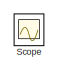
[diagram: root canvas - part 1/3, top left region]
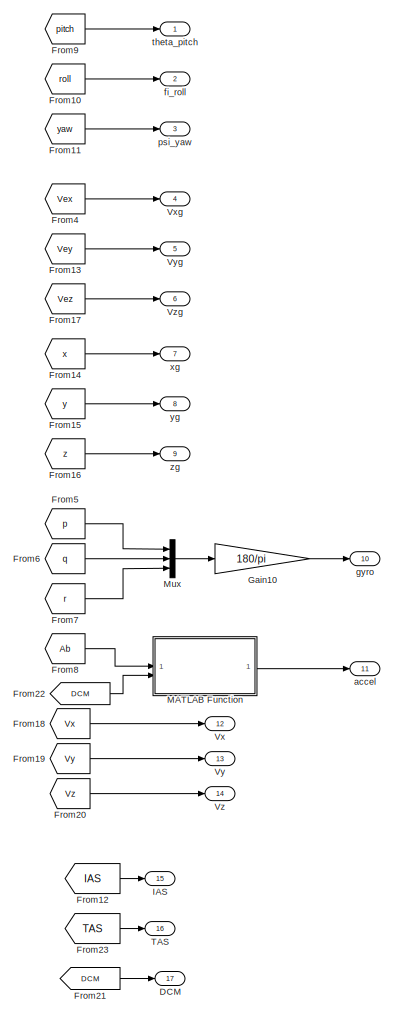
[diagram: root canvas - part 2/3, right side, full height]
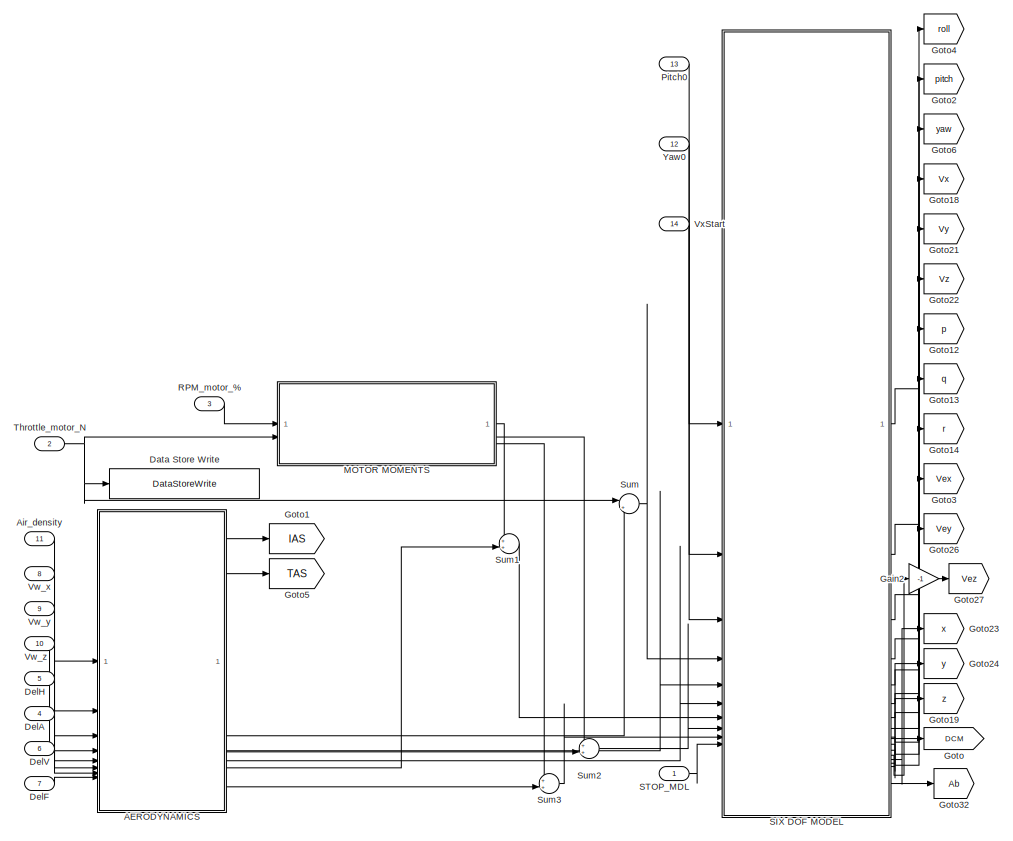
[diagram: root canvas - part 3/3, bottom left region]
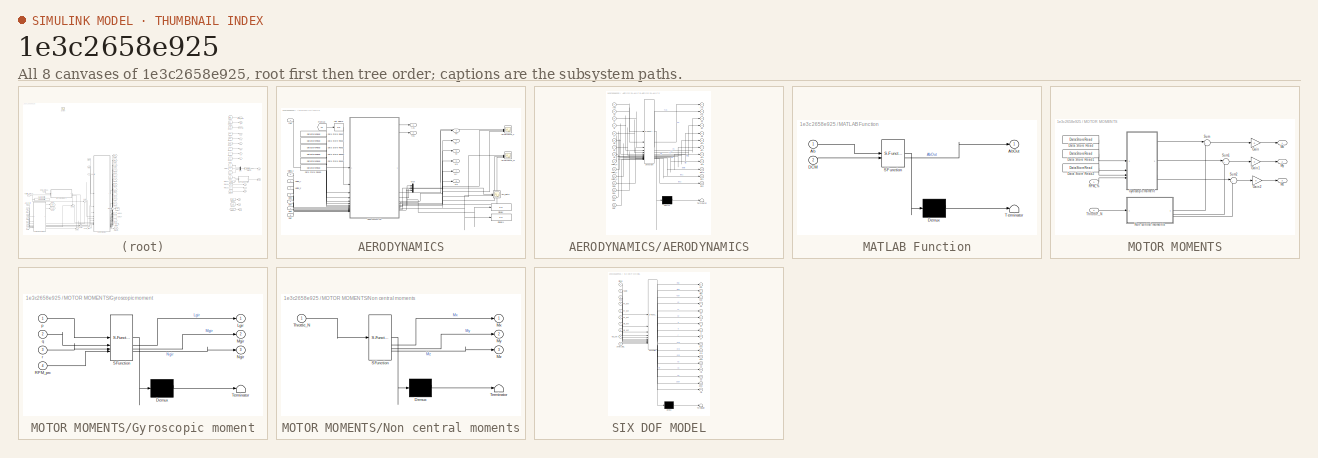
[diagram: thumbnail index - all 8 canvases of the model, root first then tree order]
MODEL slx_1e3c2658e925
KIND model
CONFIG AbsTol = auto
CONFIG EnableMultiTasking = off
CONFIG FixedStep = 0.0025
CONFIG MaxStep = auto
CONFIG MinStep = auto
CONFIG RelTol = 1e-3
CONFIG SampleTimeConstraint = Unconstrained
CONFIG SolverName = FixedStepAuto
CONFIG StartTime = 0.0
CONFIG StopTime = 20
BLOCK [SubSystem] AERODYNAMICS
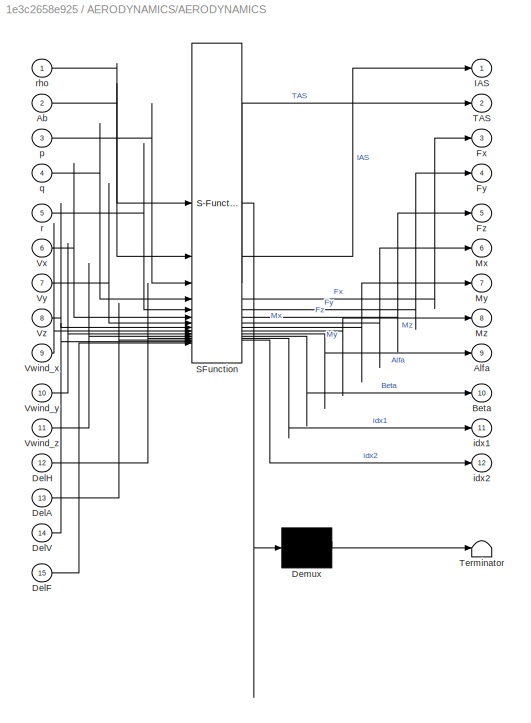
BLOCK [SubSystem] AERODYNAMICS/AERODYNAMICS
  ErrorFcn = Stateflow.Translate.translate
  PermitHierarchicalResolution = ExplicitOnly
  SFBlockType = MATLAB Function
  TreatAsAtomicUnit = on
BLOCK [Demux] AERODYNAMICS/AERODYNAMICS/ Demux 
  Outputs = 1
BLOCK [S-Function] AERODYNAMICS/AERODYNAMICS/ SFunction 
  EnableBusSupport = on
  FunctionName = sf_sfun
  Parameters = Ix,Iy,Iz,Sref,bref,cref,g,m,pochodne
  PortCounts = [15 13]
  SFcnIsStateOwnerBlock = off
  SFunctionDeploymentMode = off
  Tag = Stateflow S-Function 3
BLOCK [Terminator] AERODYNAMICS/AERODYNAMICS/ Terminator 
BLOCK [Inport] AERODYNAMICS/AERODYNAMICS/Ab
  Port = 2
BLOCK [Outport] AERODYNAMICS/AERODYNAMICS/Alfa
  Port = 9
BLOCK [Outport] AERODYNAMICS/AERODYNAMICS/Beta
  Port = 10
BLOCK [Inport] AERODYNAMICS/AERODYNAMICS/DelA
  Port = 13
BLOCK [Inport] AERODYNAMICS/AERODYNAMICS/DelF
  Port = 15
BLOCK [Inport] AERODYNAMICS/AERODYNAMICS/DelH
  Port = 12
BLOCK [Inport] AERODYNAMICS/AERODYNAMICS/DelV
  Port = 14
BLOCK [Outport] AERODYNAMICS/AERODYNAMICS/Fx
  Port = 3
BLOCK [Outport] AERODYNAMICS/AERODYNAMICS/Fy
  Port = 4
BLOCK [Outport] AERODYNAMICS/AERODYNAMICS/Fz
  Port = 5
BLOCK [Outport] AERODYNAMICS/AERODYNAMICS/IAS
BLOCK [Outport] AERODYNAMICS/AERODYNAMICS/Mx
  Port = 6
BLOCK [Outport] AERODYNAMICS/AERODYNAMICS/My
  Port = 7
BLOCK [Outport] AERODYNAMICS/AERODYNAMICS/Mz
  Port = 8
BLOCK [Outport] AERODYNAMICS/AERODYNAMICS/TAS
  Port = 2
BLOCK [Inport] AERODYNAMICS/AERODYNAMICS/Vwind_x
  Port = 9
BLOCK [Inport] AERODYNAMICS/AERODYNAMICS/Vwind_y
  Port = 10
BLOCK [Inport] AERODYNAMICS/AERODYNAMICS/Vwind_z
  Port = 11
BLOCK [Inport] AERODYNAMICS/AERODYNAMICS/Vx
  Port = 6
BLOCK [Inport] AERODYNAMICS/AERODYNAMICS/Vy
  Port = 7
BLOCK [Inport] AERODYNAMICS/AERODYNAMICS/Vz
  Port = 8
BLOCK [Outport] AERODYNAMICS/AERODYNAMICS/idx1
  Port = 11
BLOCK [Outport] AERODYNAMICS/AERODYNAMICS/idx2
  Port = 12
BLOCK [Inport] AERODYNAMICS/AERODYNAMICS/p
  Port = 3
BLOCK [Inport] AERODYNAMICS/AERODYNAMICS/q
  Port = 4
BLOCK [Inport] AERODYNAMICS/AERODYNAMICS/r
  Port = 5
BLOCK [Inport] AERODYNAMICS/AERODYNAMICS/rho
BLOCK [Scope] AERODYNAMICS/Aerodynamic_F
  Commented = on
  Floating = off
  NumInputPorts = 3
  ScopeSpecificationString = Simulink.scopes.TimeScopeBlockCfg('CurrentConfiguration', extmgr.ConfigurationSet(extmgr.Configuration('Core','General UI',true),extmgr.Configuration('Core','Source UI',true),extmgr.Configuration('Sources','WiredSimulink',true,'DataLoggingVariableName','ScopeData1'),extmgr.Configuration('Visuals','Time Domain',true,'SerializedDisplays',{struct('MinYLimReal','-1101.69406','MaxYLimReal','2474.92809'...<+2728ch>
BLOCK [Scope] AERODYNAMICS/Aerodynamic_M
  Commented = on
  Floating = off
  NumInputPorts = 3
  ScopeSpecificationString = Simulink.scopes.TimeScopeBlockCfg('CurrentConfiguration', extmgr.ConfigurationSet(extmgr.Configuration('Core','General UI',true),extmgr.Configuration('Core','Source UI',true),extmgr.Configuration('Sources','WiredSimulink',true,'DataLoggingVariableName','ScopeData2'),extmgr.Configuration('Visuals','Time Domain',true,'SerializedDisplays',{struct('MinYLimReal','-1.00000','MaxYLimReal','1.00000','YLab...<+2737ch>
BLOCK [Scope] AERODYNAMICS/Alfa_Beta
  Commented = on
  Floating = off
  NumInputPorts = 2
  ScopeSpecificationString = Simulink.scopes.TimeScopeBlockCfg('CurrentConfiguration', extmgr.ConfigurationSet(extmgr.Configuration('Core','General UI',true),extmgr.Configuration('Core','Source UI',true),extmgr.Configuration('Sources','WiredSimulink',true,'DataLoggingVariableName','ScopeData3'),extmgr.Configuration('Visuals','Time Domain',true,'SerializedDisplays',{struct('MinYLimReal','-2.44339','MaxYLimReal','13.29136','YLa...<+2131ch>
BLOCK [DataStoreRead] AERODYNAMICS/Data Store Read
  DataStoreElements = p_mem.y_prev
  DataStoreName = p_mem
  IndexOptions = Index vector (dialog)
  Indices = 1
  OutputSizes = 1
BLOCK [DataStoreRead] AERODYNAMICS/Data Store Read1
  DataStoreElements = q_mem.y_prev
  DataStoreName = q_mem
  IndexOptions = Index vector (dialog)
  Indices = 1
  OutputSizes = 1
BLOCK [DataStoreRead] AERODYNAMICS/Data Store Read2
  DataStoreElements = r_mem.y_prev
  DataStoreName = r_mem
  IndexOptions = Index vector (dialog)
  Indices = 1
  OutputSizes = 1
BLOCK [DataStoreRead] AERODYNAMICS/Data Store Read3
  DataStoreElements = vx_mem.y_prev
  DataStoreName = vx_mem
  IndexOptions = Index vector (dialog)
  Indices = 1
  OutputSizes = 1
BLOCK [DataStoreRead] AERODYNAMICS/Data Store Read4
  DataStoreElements = vy_mem.y_prev
  DataStoreName = vy_mem
  IndexOptions = Index vector (dialog)
  Indices = 1
  OutputSizes = 1
BLOCK [DataStoreRead] AERODYNAMICS/Data Store Read5
  DataStoreElements = vz_mem.y_prev
  DataStoreName = vz_mem
  IndexOptions = Index vector (dialog)
  Indices = 1
  OutputSizes = 1
BLOCK [Inport] AERODYNAMICS/DelA
  Port = 6
BLOCK [Inport] AERODYNAMICS/DelF
  Port = 8
BLOCK [Inport] AERODYNAMICS/DelH
  Port = 5
BLOCK [Inport] AERODYNAMICS/DelV
  Port = 7
BLOCK [Display] AERODYNAMICS/Display
  Commented = on
  Decimation = 1
BLOCK [Display] AERODYNAMICS/Display1
  Commented = on
  Decimation = 1
BLOCK [From] AERODYNAMICS/From23
  GotoTag = Ab
  TagVisibility = global
BLOCK [Outport] AERODYNAMICS/Fx
  Port = 3
BLOCK [Outport] AERODYNAMICS/Fy
  Port = 4
BLOCK [Outport] AERODYNAMICS/Fz
  Port = 5
BLOCK [Outport] AERODYNAMICS/IAS
BLOCK [Mux] AERODYNAMICS/Mux
  DisplayOption = bar
  Inputs = 3
BLOCK [Outport] AERODYNAMICS/Mx
  Port = 6
BLOCK [Outport] AERODYNAMICS/My
  Port = 7
BLOCK [Outport] AERODYNAMICS/Mz
  Port = 8
BLOCK [Outport] AERODYNAMICS/TAS
  Port = 2
BLOCK [UnitDelay] AERODYNAMICS/Unit Delay5
  HasFrameUpgradeWarning = on
  SampleTime = -1
BLOCK [Inport] AERODYNAMICS/Vwind_x
  Port = 2
BLOCK [Inport] AERODYNAMICS/Vwind_y
  Port = 3
BLOCK [Inport] AERODYNAMICS/Vwind_z
  Port = 4
BLOCK [Inport] AERODYNAMICS/rho
BLOCK [Inport] Air_density
  OutDataTypeStr = double
  Port = 11
BLOCK [Outport] DCM
  OutDataTypeStr = double
  Port = 17
  VectorParamsAs1DForOutWhenUnconnected = off
BLOCK [DataStoreWrite] Data Store Write
  DataStoreElements = SimulationData.ThrottleMotorN
  DataStoreName = SimulationData
  IndexOptions = Index vector (dialog)
  Indices = 1
  OutputSizes = 1
BLOCK [Inport] DelA
  OutDataTypeStr = double
  Port = 4
BLOCK [Inport] DelF
  OutDataTypeStr = double
  Port = 7
BLOCK [Inport] DelH
  OutDataTypeStr = double
  Port = 5
BLOCK [Inport] DelV
  OutDataTypeStr = double
  Port = 6
BLOCK [From] From10
  GotoTag = roll
BLOCK [From] From11
  GotoTag = yaw
BLOCK [From] From12
  GotoTag = IAS
BLOCK [From] From13
  GotoTag = Vey
  TagVisibility = global
BLOCK [From] From14
  GotoTag = x
  TagVisibility = global
BLOCK [From] From15
  GotoTag = y
  TagVisibility = global
BLOCK [From] From16
  GotoTag = z
  TagVisibility = global
BLOCK [From] From17
  GotoTag = Vez
  TagVisibility = global
BLOCK [From] From18
  GotoTag = Vx
  TagVisibility = global
BLOCK [From] From19
  GotoTag = Vy
  TagVisibility = global
BLOCK [From] From20
  GotoTag = Vz
  TagVisibility = global
BLOCK [From] From21
  GotoTag = DCM
  TagVisibility = global
BLOCK [From] From22
  GotoTag = DCM
  TagVisibility = global
BLOCK [From] From23
  GotoTag = TAS
BLOCK [From] From4
  GotoTag = Vex
  TagVisibility = global
BLOCK [From] From5
  GotoTag = p
  TagVisibility = global
BLOCK [From] From6
  GotoTag = q
  TagVisibility = global
BLOCK [From] From7
  GotoTag = r
  TagVisibility = global
BLOCK [From] From8
  GotoTag = Ab
  TagVisibility = global
BLOCK [From] From9
  GotoTag = pitch
BLOCK [Gain] Gain10
  Gain = 180/pi
BLOCK [Gain] Gain2
  Gain = -1
BLOCK [Goto] Goto
  GotoTag = DCM
  TagVisibility = global
BLOCK [Goto] Goto1
  GotoTag = IAS
BLOCK [Goto] Goto12
  GotoTag = p
  TagVisibility = global
BLOCK [Goto] Goto13
  GotoTag = q
  TagVisibility = global
BLOCK [Goto] Goto14
  GotoTag = r
  TagVisibility = global
BLOCK [Goto] Goto18
  GotoTag = Vx
  TagVisibility = global
BLOCK [Goto] Goto19
  GotoTag = z
  TagVisibility = global
BLOCK [Goto] Goto2
  GotoTag = pitch
BLOCK [Goto] Goto21
  GotoTag = Vy
  TagVisibility = global
BLOCK [Goto] Goto22
  GotoTag = Vz
  TagVisibility = global
BLOCK [Goto] Goto23
  GotoTag = x
  TagVisibility = global
BLOCK [Goto] Goto24
  GotoTag = y
  TagVisibility = global
BLOCK [Goto] Goto26
  GotoTag = Vey
  TagVisibility = global
BLOCK [Goto] Goto27
  GotoTag = Vez
  TagVisibility = global
BLOCK [Goto] Goto3
  GotoTag = Vex
  TagVisibility = global
BLOCK [Goto] Goto32
  GotoTag = Ab
  TagVisibility = global
BLOCK [Goto] Goto4
  GotoTag = roll
BLOCK [Goto] Goto5
  GotoTag = TAS
BLOCK [Goto] Goto6
  GotoTag = yaw
BLOCK [Outport] IAS
  OutDataTypeStr = double
  Port = 15
  VectorParamsAs1DForOutWhenUnconnected = off
BLOCK [SubSystem] MATLAB Function
  ErrorFcn = Stateflow.Translate.translate
  PermitHierarchicalResolution = ExplicitOnly
  SFBlockType = MATLAB Function
  TreatAsAtomicUnit = on
BLOCK [Demux] MATLAB Function/ Demux 
  Outputs = 1
BLOCK [S-Function] MATLAB Function/ SFunction 
  EnableBusSupport = on
  FunctionName = sf_sfun
  Parameters = g
  PortCounts = [2 2]
  SFcnIsStateOwnerBlock = off
  SFunctionDeploymentMode = off
  Tag = Stateflow S-Function 8
BLOCK [Terminator] MATLAB Function/ Terminator 
BLOCK [Inport] MATLAB Function/Ab
BLOCK [Outport] MATLAB Function/AbOut
BLOCK [Inport] MATLAB Function/DCM
  Port = 2
BLOCK [SubSystem] MOTOR MOMENTS
BLOCK [DataStoreRead] MOTOR MOMENTS/Data Store Read
  DataStoreElements = p_mem.y_prev
  DataStoreName = p_mem
  IndexOptions = Index vector (dialog)
  Indices = 1
  OutputSizes = 1
BLOCK [DataStoreRead] MOTOR MOMENTS/Data Store Read1
  DataStoreElements = q_mem.y_prev
  DataStoreName = q_mem
  IndexOptions = Index vector (dialog)
  Indices = 1
  OutputSizes = 1
BLOCK [DataStoreRead] MOTOR MOMENTS/Data Store Read2
  DataStoreElements = r_mem.y_prev
  DataStoreName = r_mem
  IndexOptions = Index vector (dialog)
  Indices = 1
  OutputSizes = 1
BLOCK [Gain] MOTOR MOMENTS/Gain
  Gain = 0
BLOCK [Gain] MOTOR MOMENTS/Gain1
  Gain = 0
BLOCK [Gain] MOTOR MOMENTS/Gain2
  Gain = 0
BLOCK [SubSystem] MOTOR MOMENTS/Gyroscopic moment
  ErrorFcn = Stateflow.Translate.translate
  PermitHierarchicalResolution = ExplicitOnly
  SFBlockType = MATLAB Function
  TreatAsAtomicUnit = on
BLOCK [Demux] MOTOR MOMENTS/Gyroscopic moment/ Demux 
  Outputs = 1
BLOCK [S-Function] MOTOR MOMENTS/Gyroscopic moment/ SFunction 
  EnableBusSupport = on
  FunctionName = sf_sfun
  PortCounts = [4 4]
  SFcnIsStateOwnerBlock = off
  SFunctionDeploymentMode = off
  Tag = Stateflow S-Function 5
BLOCK [Terminator] MOTOR MOMENTS/Gyroscopic moment/ Terminator 
BLOCK [Outport] MOTOR MOMENTS/Gyroscopic moment/Lgir
BLOCK [Outport] MOTOR MOMENTS/Gyroscopic moment/Mgir
  Port = 2
BLOCK [Outport] MOTOR MOMENTS/Gyroscopic moment/Ngir
  Port = 3
BLOCK [Inport] MOTOR MOMENTS/Gyroscopic moment/RPM_prc
  Port = 4
BLOCK [Inport] MOTOR MOMENTS/Gyroscopic moment/p
BLOCK [Inport] MOTOR MOMENTS/Gyroscopic moment/q
  Port = 2
BLOCK [Inport] MOTOR MOMENTS/Gyroscopic moment/r
  Port = 3
BLOCK [Outport] MOTOR MOMENTS/Mx
BLOCK [Outport] MOTOR MOMENTS/My
  Port = 2
BLOCK [Outport] MOTOR MOMENTS/Mz
  Port = 3
BLOCK [SubSystem] MOTOR MOMENTS/Non central moments
  ErrorFcn = Stateflow.Translate.translate
  PermitHierarchicalResolution = ExplicitOnly
  SFBlockType = MATLAB Function
  TreatAsAtomicUnit = on
BLOCK [Demux] MOTOR MOMENTS/Non central moments/ Demux 
  Outputs = 1
BLOCK [S-Function] MOTOR MOMENTS/Non central moments/ SFunction 
  EnableBusSupport = on
  FunctionName = sf_sfun
  PortCounts = [1 4]
  SFcnIsStateOwnerBlock = off
  SFunctionDeploymentMode = off
  Tag = Stateflow S-Function 4
BLOCK [Terminator] MOTOR MOMENTS/Non central moments/ Terminator 
BLOCK [Outport] MOTOR MOMENTS/Non central moments/Mx
BLOCK [Outport] MOTOR MOMENTS/Non central moments/My
  Port = 2
BLOCK [Outport] MOTOR MOMENTS/Non central moments/Mz
  Port = 3
BLOCK [Inport] MOTOR MOMENTS/Non central moments/Throttle_N
BLOCK [Inport] MOTOR MOMENTS/RPM_%
BLOCK [Sum] MOTOR MOMENTS/Sum
  Inputs = |++
BLOCK [Sum] MOTOR MOMENTS/Sum1
  Inputs = |++
BLOCK [Sum] MOTOR MOMENTS/Sum2
  Inputs = |++
BLOCK [Inport] MOTOR MOMENTS/Throttle_N
  Port = 2
BLOCK [Mux] Mux
  DisplayOption = bar
  Inputs = 3
BLOCK [Inport] Pitch0
  OutDataTypeStr = double
  Port = 13
BLOCK [Inport] RPM_motor_%
  OutDataTypeStr = double
  Port = 3
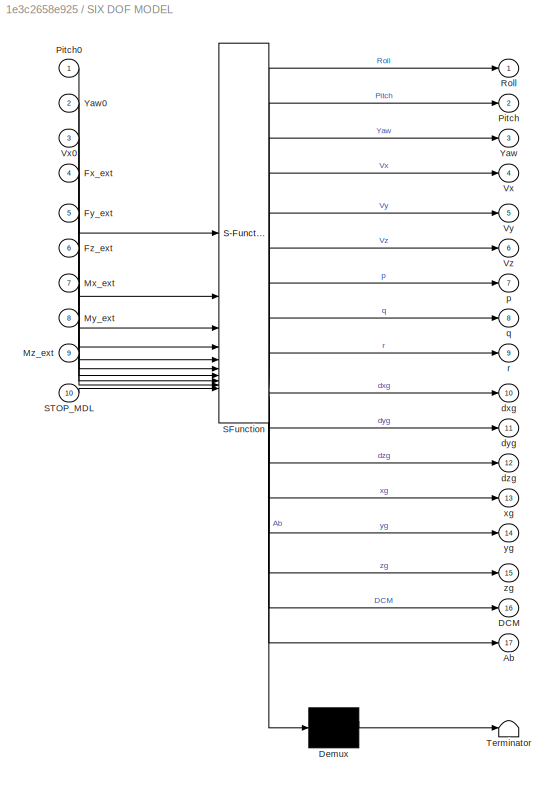
BLOCK [SubSystem] SIX DOF MODEL
  ErrorFcn = Stateflow.Translate.translate
  PermitHierarchicalResolution = ExplicitOnly
  Priority = 0
  SFBlockType = MATLAB Function
  SystemSampleTime = 0.0025
  TreatAsAtomicUnit = on
  TreatAsGroupedWhenPropagatingVariantConditions = off
BLOCK [Demux] SIX DOF MODEL/ Demux 
  Outputs = 1
BLOCK [S-Function] SIX DOF MODEL/ SFunction 
  EnableBusSupport = on
  FunctionName = sf_sfun
  Parameters = Ix,Iy,Iz,g,m
  PortCounts = [10 18]
  SFcnIsStateOwnerBlock = off
  SFunctionDeploymentMode = off
  Tag = Stateflow S-Function 51
BLOCK [Terminator] SIX DOF MODEL/ Terminator 
BLOCK [Outport] SIX DOF MODEL/Ab
  Port = 17
  VectorParamsAs1DForOutWhenUnconnected = off
BLOCK [Outport] SIX DOF MODEL/DCM
  Port = 16
  VectorParamsAs1DForOutWhenUnconnected = off
BLOCK [Inport] SIX DOF MODEL/Fx_ext
  Port = 4
BLOCK [Inport] SIX DOF MODEL/Fy_ext
  Port = 5
BLOCK [Inport] SIX DOF MODEL/Fz_ext
  Port = 6
BLOCK [Inport] SIX DOF MODEL/Mx_ext
  Port = 7
BLOCK [Inport] SIX DOF MODEL/My_ext
  Port = 8
BLOCK [Inport] SIX DOF MODEL/Mz_ext
  Port = 9
BLOCK [Outport] SIX DOF MODEL/Pitch
  Port = 2
  VectorParamsAs1DForOutWhenUnconnected = off
BLOCK [Inport] SIX DOF MODEL/Pitch0
BLOCK [Outport] SIX DOF MODEL/Roll
  VectorParamsAs1DForOutWhenUnconnected = off
BLOCK [Inport] SIX DOF MODEL/STOP_MDL
  Port = 10
BLOCK [Outport] SIX DOF MODEL/Vx
  Port = 4
  VectorParamsAs1DForOutWhenUnconnected = off
BLOCK [Inport] SIX DOF MODEL/Vx0
  Port = 3
BLOCK [Outport] SIX DOF MODEL/Vy
  Port = 5
  VectorParamsAs1DForOutWhenUnconnected = off
BLOCK [Outport] SIX DOF MODEL/Vz
  Port = 6
  VectorParamsAs1DForOutWhenUnconnected = off
BLOCK [Outport] SIX DOF MODEL/Yaw
  Port = 3
  VectorParamsAs1DForOutWhenUnconnected = off
BLOCK [Inport] SIX DOF MODEL/Yaw0
  Port = 2
BLOCK [Outport] SIX DOF MODEL/dxg
  Port = 10
  VectorParamsAs1DForOutWhenUnconnected = off
BLOCK [Outport] SIX DOF MODEL/dyg
  Port = 11
  VectorParamsAs1DForOutWhenUnconnected = off
BLOCK [Outport] SIX DOF MODEL/dzg
  Port = 12
  VectorParamsAs1DForOutWhenUnconnected = off
BLOCK [Outport] SIX DOF MODEL/p
  Port = 7
  VectorParamsAs1DForOutWhenUnconnected = off
BLOCK [Outport] SIX DOF MODEL/q
  Port = 8
  VectorParamsAs1DForOutWhenUnconnected = off
BLOCK [Outport] SIX DOF MODEL/r
  Port = 9
  VectorParamsAs1DForOutWhenUnconnected = off
BLOCK [Outport] SIX DOF MODEL/xg
  Port = 13
BLOCK [Outport] SIX DOF MODEL/yg
  Port = 14
BLOCK [Outport] SIX DOF MODEL/zg
  Port = 15
BLOCK [Inport] STOP_MDL
  OutDataTypeStr = boolean
BLOCK [Scope] Scope
  Floating = off
  IOType = viewer
  NumInputPorts = 1
  ScopeSpecificationString = Simulink.scopes.TimeScopeBlockCfg('CurrentConfiguration', extmgr.ConfigurationSet(extmgr.Configuration('Core','General UI',true),extmgr.Configuration('Core','Source UI',true),extmgr.Configuration('Sources','WiredSimulink',true),extmgr.Configuration('Visuals','Time Domain',true,'SerializedDisplays',{struct('MinYLimReal','-55.88632','MaxYLimReal','502.97692','YLabelReal','','MinYLimMag','0.00000','M...<+1430ch>
BLOCK [Sum] Sum
  Inputs = |++
BLOCK [Sum] Sum1
  Inputs = ++|
BLOCK [Sum] Sum2
  Inputs = ++|
BLOCK [Sum] Sum3
  Inputs = ++|
BLOCK [Outport] TAS
  OutDataTypeStr = double
  Port = 16
  VectorParamsAs1DForOutWhenUnconnected = off
BLOCK [Inport] Throttle_motor_N
  OutDataTypeStr = double
  Port = 2
BLOCK [Inport] Vw_x
  OutDataTypeStr = double
  Port = 8
BLOCK [Inport] Vw_y
  OutDataTypeStr = double
  Port = 9
BLOCK [Inport] Vw_z
  OutDataTypeStr = double
  Port = 10
BLOCK [Outport] Vx
  Port = 12
  VectorParamsAs1DForOutWhenUnconnected = off
BLOCK [Inport] VxStart
  OutDataTypeStr = double
  Port = 14
BLOCK [Outport] Vxg
  Port = 4
  VectorParamsAs1DForOutWhenUnconnected = off
BLOCK [Outport] Vy
  Port = 13
  VectorParamsAs1DForOutWhenUnconnected = off
BLOCK [Outport] Vyg
  Port = 5
  VectorParamsAs1DForOutWhenUnconnected = off
BLOCK [Outport] Vz
  Port = 14
  VectorParamsAs1DForOutWhenUnconnected = off
BLOCK [Outport] Vzg
  Port = 6
  VectorParamsAs1DForOutWhenUnconnected = off
BLOCK [Inport] Yaw0
  OutDataTypeStr = double
  Port = 12
BLOCK [Outport] accel
  Port = 11
  VectorParamsAs1DForOutWhenUnconnected = off
BLOCK [Outport] fi_roll
  Port = 2
  VectorParamsAs1DForOutWhenUnconnected = off
BLOCK [Outport] gyro
  Port = 10
  VectorParamsAs1DForOutWhenUnconnected = off
BLOCK [Outport] psi_yaw
  Port = 3
  VectorParamsAs1DForOutWhenUnconnected = off
BLOCK [Outport] theta_pitch
  VectorParamsAs1DForOutWhenUnconnected = off
BLOCK [Outport] xg
  Port = 7
  VectorParamsAs1DForOutWhenUnconnected = off
BLOCK [Outport] yg
  Port = 8
  VectorParamsAs1DForOutWhenUnconnected = off
BLOCK [Outport] zg
  Port = 9
  VectorParamsAs1DForOutWhenUnconnected = off
LINE AERODYNAMICS/AERODYNAMICS:1 -> AERODYNAMICS/IAS:1
NET AERODYNAMICS/AERODYNAMICS:10 -> AERODYNAMICS/Alfa_Beta:2, AERODYNAMICS/Display1:1
LINE AERODYNAMICS/AERODYNAMICS:11 -> AERODYNAMICS/Mux:2
LINE AERODYNAMICS/AERODYNAMICS:12 -> AERODYNAMICS/Mux:3
LINE AERODYNAMICS/AERODYNAMICS:2 -> AERODYNAMICS/TAS:1
NET AERODYNAMICS/AERODYNAMICS:3 -> AERODYNAMICS/Aerodynamic_F:1, AERODYNAMICS/Fx:1
NET AERODYNAMICS/AERODYNAMICS:4 -> AERODYNAMICS/Aerodynamic_F:2, AERODYNAMICS/Fy:1
NET AERODYNAMICS/AERODYNAMICS:5 -> AERODYNAMICS/Aerodynamic_F:3, AERODYNAMICS/Fz:1
NET AERODYNAMICS/AERODYNAMICS:6 -> AERODYNAMICS/Aerodynamic_M:1, AERODYNAMICS/Mx:1
NET AERODYNAMICS/AERODYNAMICS:7 -> AERODYNAMICS/Aerodynamic_M:2, AERODYNAMICS/My:1
NET AERODYNAMICS/AERODYNAMICS:8 -> AERODYNAMICS/Aerodynamic_M:3, AERODYNAMICS/Mz:1
NET AERODYNAMICS/AERODYNAMICS:9 -> AERODYNAMICS/Display:1, AERODYNAMICS/Mux:1
LINE AERODYNAMICS/Data Store Read1:1 -> AERODYNAMICS/AERODYNAMICS:4
LINE AERODYNAMICS/Data Store Read2:1 -> AERODYNAMICS/AERODYNAMICS:5
LINE AERODYNAMICS/Data Store Read3:1 -> AERODYNAMICS/AERODYNAMICS:6
LINE AERODYNAMICS/Data Store Read4:1 -> AERODYNAMICS/AERODYNAMICS:7
LINE AERODYNAMICS/Data Store Read5:1 -> AERODYNAMICS/AERODYNAMICS:8
LINE AERODYNAMICS/Data Store Read:1 -> AERODYNAMICS/AERODYNAMICS:3
LINE AERODYNAMICS/DelA:1 -> AERODYNAMICS/AERODYNAMICS:13
LINE AERODYNAMICS/DelF:1 -> AERODYNAMICS/AERODYNAMICS:15
LINE AERODYNAMICS/DelH:1 -> AERODYNAMICS/AERODYNAMICS:12
LINE AERODYNAMICS/DelV:1 -> AERODYNAMICS/AERODYNAMICS:14
LINE AERODYNAMICS/From23:1 -> AERODYNAMICS/Unit Delay5:1
LINE AERODYNAMICS/Mux:1 -> AERODYNAMICS/Alfa_Beta:1
LINE AERODYNAMICS/Unit Delay5:1 -> AERODYNAMICS/AERODYNAMICS:2
LINE AERODYNAMICS/Vwind_x:1 -> AERODYNAMICS/AERODYNAMICS:9
LINE AERODYNAMICS/Vwind_y:1 -> AERODYNAMICS/AERODYNAMICS:10
LINE AERODYNAMICS/Vwind_z:1 -> AERODYNAMICS/AERODYNAMICS:11
LINE AERODYNAMICS/rho:1 -> AERODYNAMICS/AERODYNAMICS:1
LINE AERODYNAMICS:1 -> Goto1:1
LINE AERODYNAMICS:2 -> Goto5:1
LINE AERODYNAMICS:3 -> Sum:2
LINE AERODYNAMICS:4 -> SIX DOF MODEL:5
LINE AERODYNAMICS:5 -> SIX DOF MODEL:6
LINE AERODYNAMICS:6 -> Sum1:2
LINE AERODYNAMICS:7 -> Sum2:2
LINE AERODYNAMICS:8 -> Sum3:2
LINE Air_density:1 -> AERODYNAMICS:1
LINE DelA:1 -> AERODYNAMICS:6
LINE DelF:1 -> AERODYNAMICS:8
LINE DelH:1 -> AERODYNAMICS:5
LINE DelV:1 -> AERODYNAMICS:7
LINE From10:1 -> fi_roll:1
LINE From11:1 -> psi_yaw:1
LINE From12:1 -> IAS:1
LINE From13:1 -> Vyg:1
LINE From14:1 -> xg:1
LINE From15:1 -> yg:1
LINE From16:1 -> zg:1
LINE From17:1 -> Vzg:1
LINE From18:1 -> Vx:1
LINE From19:1 -> Vy:1
LINE From20:1 -> Vz:1
LINE From21:1 -> DCM:1
LINE From22:1 -> MATLAB Function:2
LINE From23:1 -> TAS:1
LINE From4:1 -> Vxg:1
LINE From5:1 -> Mux:1
LINE From6:1 -> Mux:2
LINE From7:1 -> Mux:3
LINE From8:1 -> MATLAB Function:1
LINE From9:1 -> theta_pitch:1
LINE Gain10:1 -> gyro:1
LINE Gain2:1 -> Goto27:1
LINE MATLAB Function:1 -> accel:1
LINE MOTOR MOMENTS/Data Store Read1:1 -> MOTOR MOMENTS/Gyroscopic moment:2
LINE MOTOR MOMENTS/Data Store Read2:1 -> MOTOR MOMENTS/Gyroscopic moment:3
LINE MOTOR MOMENTS/Data Store Read:1 -> MOTOR MOMENTS/Gyroscopic moment:1
LINE MOTOR MOMENTS/Gain1:1 -> MOTOR MOMENTS/My:1
LINE MOTOR MOMENTS/Gain2:1 -> MOTOR MOMENTS/Mz:1
LINE MOTOR MOMENTS/Gain:1 -> MOTOR MOMENTS/Mx:1
LINE MOTOR MOMENTS/Gyroscopic moment:1 -> MOTOR MOMENTS/Sum:1
LINE MOTOR MOMENTS/Gyroscopic moment:2 -> MOTOR MOMENTS/Sum1:1
LINE MOTOR MOMENTS/Gyroscopic moment:3 -> MOTOR MOMENTS/Sum2:1
LINE MOTOR MOMENTS/Non central moments:1 -> MOTOR MOMENTS/Sum:2
LINE MOTOR MOMENTS/Non central moments:2 -> MOTOR MOMENTS/Sum1:2
LINE MOTOR MOMENTS/Non central moments:3 -> MOTOR MOMENTS/Sum2:2
LINE MOTOR MOMENTS/RPM_%:1 -> MOTOR MOMENTS/Gyroscopic moment:4
LINE MOTOR MOMENTS/Sum1:1 -> MOTOR MOMENTS/Gain1:1
LINE MOTOR MOMENTS/Sum2:1 -> MOTOR MOMENTS/Gain2:1
LINE MOTOR MOMENTS/Sum:1 -> MOTOR MOMENTS/Gain:1
LINE MOTOR MOMENTS/Throttle_N:1 -> MOTOR MOMENTS/Non central moments:1
LINE MOTOR MOMENTS:1 -> Sum1:1
LINE MOTOR MOMENTS:2 -> Sum2:1
LINE MOTOR MOMENTS:3 -> Sum3:1
LINE Mux:1 -> Gain10:1
LINE Pitch0:1 -> SIX DOF MODEL:1
LINE RPM_motor_%:1 -> MOTOR MOMENTS:1
LINE SIX DOF MODEL:1 -> Goto4:1
LINE SIX DOF MODEL:10 -> Goto3:1
LINE SIX DOF MODEL:11 -> Goto26:1
LINE SIX DOF MODEL:12 -> Gain2:1
LINE SIX DOF MODEL:13 -> Goto23:1
LINE SIX DOF MODEL:14 -> Goto24:1
LINE SIX DOF MODEL:15 -> Goto19:1
LINE SIX DOF MODEL:16 -> Goto:1
LINE SIX DOF MODEL:17 -> Goto32:1
LINE SIX DOF MODEL:2 -> Goto2:1
LINE SIX DOF MODEL:3 -> Goto6:1
LINE SIX DOF MODEL:4 -> Goto18:1
LINE SIX DOF MODEL:5 -> Goto21:1
LINE SIX DOF MODEL:6 -> Goto22:1
LINE SIX DOF MODEL:7 -> Goto12:1
LINE SIX DOF MODEL:8 -> Goto13:1
LINE SIX DOF MODEL:9 -> Goto14:1
LINE STOP_MDL:1 -> SIX DOF MODEL:10
LINE Sum1:1 -> SIX DOF MODEL:7
LINE Sum2:1 -> SIX DOF MODEL:8
LINE Sum3:1 -> SIX DOF MODEL:9
LINE Sum:1 -> SIX DOF MODEL:4
NET Throttle_motor_N:1 -> Data Store Write:1, MOTOR MOMENTS:2, Sum:1
LINE Vw_x:1 -> AERODYNAMICS:2
LINE Vw_y:1 -> AERODYNAMICS:3
LINE Vw_z:1 -> AERODYNAMICS:4
LINE VxStart:1 -> SIX DOF MODEL:3
LINE Yaw0:1 -> SIX DOF MODEL:2
note: NET lines group one-source signal fan-out (src -> all destinations, sorted); 1:1 wires keep LINE
CHART AERODYNAMICS/AERODYNAMICS states=1 transitions=1
  STATE_LABEL 'eML_blk_kernel()'
  STATE_LABEL 'SCRIPT:\nfunction [IAS, TAS,Fx,Fy,Fz,Mx,My,Mz,Alfa,Beta,idx1,idx2]= fcn(rho,Ab,p,q,r,Vx,Vy,Vz,Vwind_x,Vwind_y,Vwind_z,DelH,DelA,DelV,DelF, Ix, Iy, Iz, g, m, pochodne, cref, bref, Sref)\n\nglobal SimulationData\n\npersistent alfa; if isempty(alfa) alfa = double(0);end\npersistent alfa_old; if isempty(alfa_old) alfa_old = double(0);end\npersistent beta; if isempty(beta) beta = double(0);end\n\n    sa = sin(a...<+2510ch>'
CHART MOTOR MOMENTS/Non central moments states=1 transitions=1
  STATE_LABEL 'eML_blk_kernel()'
  STATE_LABEL 'SCRIPT:\nfunction [Mx,My,Mz]= fcn(Throttle_N)\n% z offset in body cordinates\nz_offset = 0;\n\nMx = 0;\nMy = Throttle_N * z_offset;\nMz = 0;\n'
CHART MOTOR MOMENTS/Gyroscopic moment states=1 transitions=1
  STATE_LABEL 'eML_blk_kernel()'
  STATE_LABEL 'SCRIPT:\nfunction [Lgir,Mgir,Ngir] = fcn(p,q,r,RPM_prc)\nKp = 0.01;\nJ = 0.001;\nomega_x = RPM_prc*Kp; \nomega_y = 0;\nomega_z = 0;\nLgir=J*(sum(omega_y)*r-sum(omega_z)*q);\nMgir=J*(sum(omega_z)*p-sum(omega_x)*r);\nNgir=J*(sum(omega_x)*q-sum(omega_y)*p);'
CHART MATLAB Function states=1 transitions=1
  STATE_LABEL 'eML_blk_kernel()'
  STATE_LABEL "SCRIPT:\nfunction AbOut = fcn(Ab, DCM, g)\n\n\n\nAbOut =  Ab + DCM' * [0; 0; -g];\n\n\n\n"
CHART SIX DOF MODEL states=1 transitions=1
  STATE_LABEL 'eML_blk_kernel()'
  STATE_LABEL 'SCRIPT:\nfunction [Roll, Pitch, Yaw, ... speed of change of angles \n          Vx, Vy, Vz, ... linear accelerations\n          p, q, r, ... rotational accelerations\n          dxg,dyg,dzg, ... velocities in the earth-related system\n          xg,yg,zg,...\n          DCM, ... z q do g\n          Ab]... acceleration of the object\n          = fcn(Pitch0,Yaw0,Vx0,...         \n          m,Ix, Iy, Iz,...\n     ...<+3608ch>'
CHART  states=0 transitions=0
CHART  states=0 transitions=0
CHART  states=0 transitions=0
CHART  states=0 transitions=0
CHART  states=0 transitions=0
